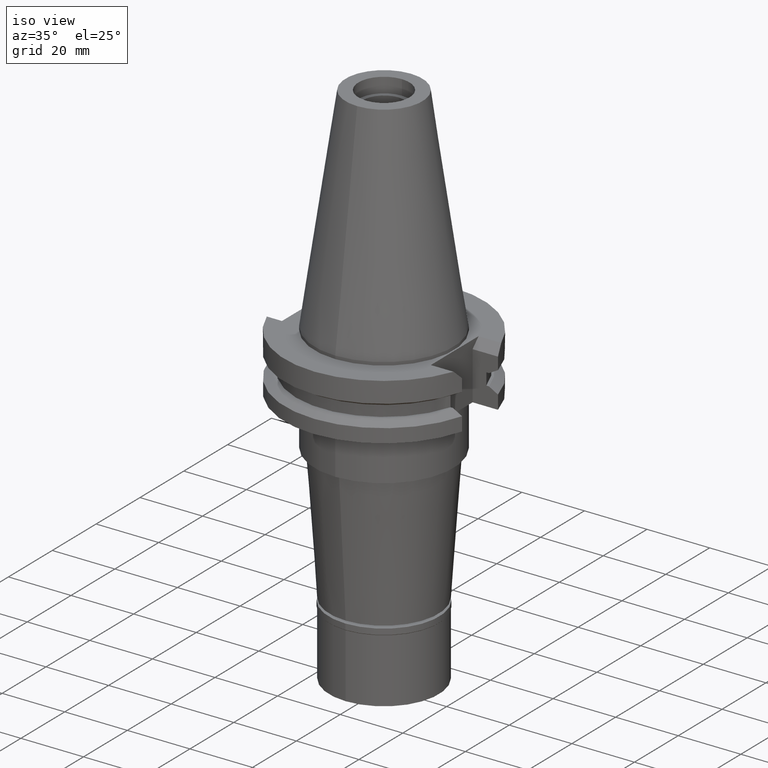
[diagram: clean part render]
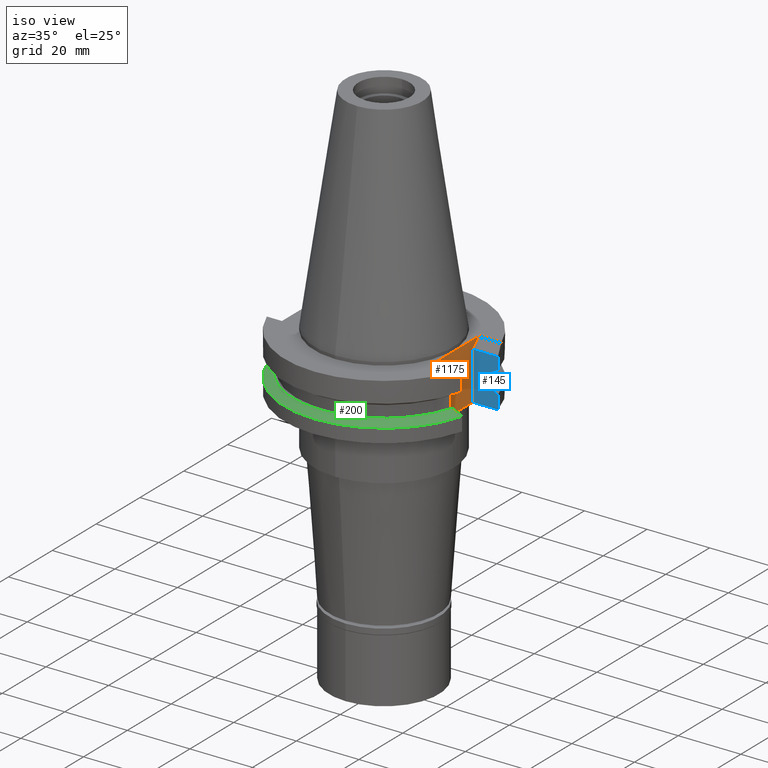
[diagram: same view with three faces highlighted in distinct colors, each labeled with its STEP entity id]
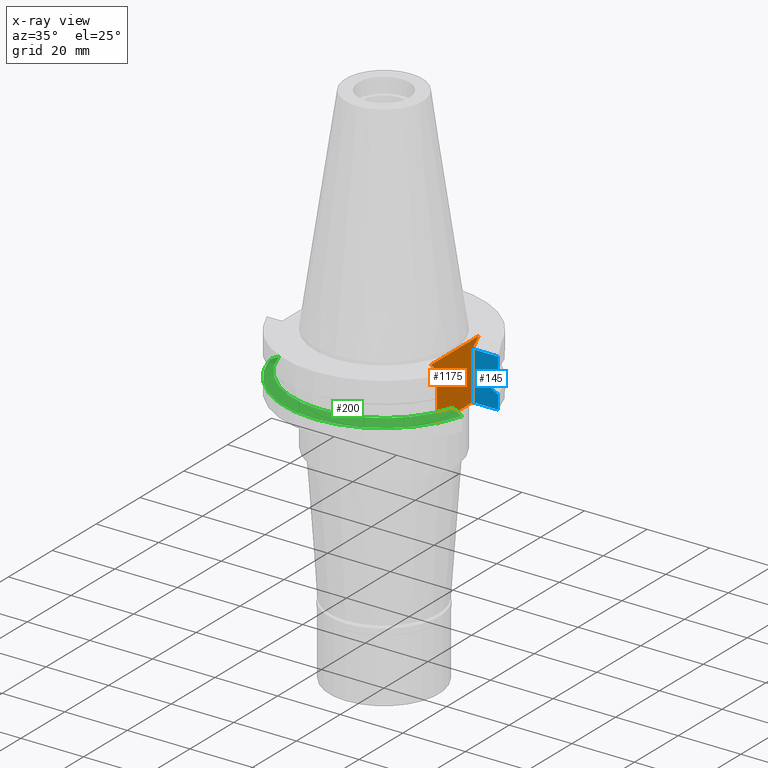
[diagram: x-ray of the same camera — body ghosted, the three highlighted faces saturated]
A machine part, iso view with three faces highlighted in distinct colors.
The next image is the same camera in x-ray (body ghosted, the three faces saturated) — at least one of them is partly hidden behind the body in this view.
Their STEP definitions:

[orange] entity #1175 — the highlighted planar face has unit normal (1, 0, 0).
#1 = CARTESIAN_POINT ( 'NONE',  ( 22.57000000000000028, -8.189999999999999503, -3.700000000000000178 ) ) ;
#35 = VECTOR ( 'NONE', #3303, 1000.000000000000000 ) ;
#162 = VERTEX_POINT ( 'NONE', #1974 ) ;
#183 = VECTOR ( 'NONE', #526, 1000.000000000000114 ) ;
#290 = VECTOR ( 'NONE', #2380, 1000.000000000000114 ) ;
#321 = LINE ( 'NONE', #338, #2744 ) ;
#338 = CARTESIAN_POINT ( 'NONE',  ( 22.57000000000000028, 10.89000000000000057, -1.000000000000000000 ) ) ;
#417 = CARTESIAN_POINT ( 'NONE',  ( 22.57000000000000028, 8.189999999999999503, -3.700000000000000178 ) ) ;
#426 = LINE ( 'NONE', #1454, #35 ) ;
#435 = DIRECTION ( 'NONE',  ( 1.000000000000000000, 0.0000000000000000000, 0.0000000000000000000 ) ) ;
#526 = DIRECTION ( 'NONE',  ( 0.0000000000000000000, -0.7071067811865474617, -0.7071067811865474617 ) ) ;
#676 = ORIENTED_EDGE ( 'NONE', *, *, #935, .F. ) ;
#720 = AXIS2_PLACEMENT_3D ( 'NONE', #3000, #435, #2269 ) ;
#760 = LINE ( 'NONE', #1579, #183 ) ;
#916 = DIRECTION ( 'NONE',  ( 0.0000000000000000000, 0.0000000000000000000, -1.000000000000000000 ) ) ;
#935 = EDGE_CURVE ( 'NONE', #2408, #3145, #2826, .T. ) ;
#1088 = CARTESIAN_POINT ( 'NONE',  ( 22.57000000000000028, -8.189999999999999503, -19.05000000000000071 ) ) ;
#1175 = ADVANCED_FACE ( 'NONE', ( #2533 ), #2474, .T. ) ;
#1315 = ORIENTED_EDGE ( 'NONE', *, *, #2962, .F. ) ;
#1316 = EDGE_CURVE ( 'NONE', #2788, #1557, #760, .T. ) ;
#1363 = DIRECTION ( 'NONE',  ( 0.0000000000000000000, -1.000000000000000000, 0.0000000000000000000 ) ) ;
#1407 = ORIENTED_EDGE ( 'NONE', *, *, #3300, .T. ) ;
#1454 = CARTESIAN_POINT ( 'NONE',  ( 22.57000000000000028, 8.189999999999999503, -19.05000000000000071 ) ) ;
#1524 = ORIENTED_EDGE ( 'NONE', *, *, #2462, .F. ) ;
#1557 = VERTEX_POINT ( 'NONE', #417 ) ;
#1579 = CARTESIAN_POINT ( 'NONE',  ( 22.57000000000000028, 10.89000000000000057, -1.000000000000000000 ) ) ;
#1601 = VECTOR ( 'NONE', #916, 1000.000000000000000 ) ;
#1708 = LINE ( 'NONE', #2018, #1748 ) ;
#1747 = DIRECTION ( 'NONE',  ( 0.0000000000000000000, 0.0000000000000000000, 1.000000000000000000 ) ) ;
#1748 = VECTOR ( 'NONE', #1747, 1000.000000000000000 ) ;
#1871 = EDGE_LOOP ( 'NONE', ( #2439, #2655, #1407, #676, #1524, #1315 ) ) ;
#1899 = CARTESIAN_POINT ( 'NONE',  ( 22.57000000000000028, 10.89000000000000057, -1.000000000000000000 ) ) ;
#1964 = LINE ( 'NONE', #2013, #1601 ) ;
#1974 = CARTESIAN_POINT ( 'NONE',  ( 22.57000000000000028, 8.189999999999999503, -19.05000000000000071 ) ) ;
#2013 = CARTESIAN_POINT ( 'NONE',  ( 22.57000000000000028, 8.189999999999999503, -3.700000000000000178 ) ) ;
#2018 = CARTESIAN_POINT ( 'NONE',  ( 22.57000000000000028, -8.189999999999999503, -19.05000000000000071 ) ) ;
#2176 = VERTEX_POINT ( 'NONE', #1088 ) ;
#2269 = DIRECTION ( 'NONE',  ( 0.0000000000000000000, 1.000000000000000000, 0.0000000000000000000 ) ) ;
#2380 = DIRECTION ( 'NONE',  ( 0.0000000000000000000, -0.7071067811865474617, 0.7071067811865474617 ) ) ;
#2408 = VERTEX_POINT ( 'NONE', #2483 ) ;
#2439 = ORIENTED_EDGE ( 'NONE', *, *, #2887, .F. ) ;
#2462 = EDGE_CURVE ( 'NONE', #2176, #2408, #1708, .T. ) ;
#2474 = PLANE ( 'NONE',  #720 ) ;
#2483 = CARTESIAN_POINT ( 'NONE',  ( 22.57000000000000028, -8.189999999999999503, -3.700000000000000178 ) ) ;
#2533 = FACE_OUTER_BOUND ( 'NONE', #1871, .T. ) ;
#2566 = CARTESIAN_POINT ( 'NONE',  ( 22.57000000000000028, -10.89000000000000057, -1.000000000000000000 ) ) ;
#2655 = ORIENTED_EDGE ( 'NONE', *, *, #1316, .F. ) ;
#2744 = VECTOR ( 'NONE', #1363, 1000.000000000000000 ) ;
#2788 = VERTEX_POINT ( 'NONE', #1899 ) ;
#2826 = LINE ( 'NONE', #1, #290 ) ;
#2887 = EDGE_CURVE ( 'NONE', #1557, #162, #1964, .T. ) ;
#2962 = EDGE_CURVE ( 'NONE', #162, #2176, #426, .T. ) ;
#3000 = CARTESIAN_POINT ( 'NONE',  ( 22.57000000000000028, 0.0000000000000000000, 0.0000000000000000000 ) ) ;
#3145 = VERTEX_POINT ( 'NONE', #2566 ) ;
#3300 = EDGE_CURVE ( 'NONE', #2788, #3145, #321, .T. ) ;
#3303 = DIRECTION ( 'NONE',  ( 0.0000000000000000000, -1.000000000000000000, 0.0000000000000000000 ) ) ;

[blue] entity #145 — the highlighted planar face has unit normal (0, 1, 0).
#22 = VECTOR ( 'NONE', #1959, 1000.000000000000114 ) ;
#28 = EDGE_LOOP ( 'NONE', ( #1380, #1258, #2688, #1709, #215, #280, #1425, #1812, #2003, #827 ) ) ;
#60 = CARTESIAN_POINT ( 'NONE',  ( 30.67550162588999640, 8.189999999999999503, -3.700000000000000178 ) ) ;
#71 = EDGE_CURVE ( 'NONE', #162, #837, #3212, .T. ) ;
#73 = CARTESIAN_POINT ( 'NONE',  ( 29.69744119761000078, 8.189999973648999898, -14.10665284434999833 ) ) ;
#145 = ADVANCED_FACE ( 'NONE', ( #2024 ), #3314, .F. ) ;
#162 = VERTEX_POINT ( 'NONE', #1974 ) ;
#167 = EDGE_CURVE ( 'NONE', #2319, #847, #2283, .T. ) ;
#215 = ORIENTED_EDGE ( 'NONE', *, *, #1558, .T. ) ;
#231 = VERTEX_POINT ( 'NONE', #1716 ) ;
#255 = CARTESIAN_POINT ( 'NONE',  ( 30.67550162588999640, 8.189999999999999503, -19.05000000000000071 ) ) ;
#280 = ORIENTED_EDGE ( 'NONE', *, *, #3165, .F. ) ;
#293 = CARTESIAN_POINT ( 'NONE',  ( 27.79399588452999836, 8.189999365884000682, -9.210000000000999165 ) ) ;
#331 = CARTESIAN_POINT ( 'NONE',  ( 27.79399588513999930, 8.189999365855999969, -13.05000000000000071 ) ) ;
#348 = CARTESIAN_POINT ( 'NONE',  ( 28.73694899415999870, 8.190000279304998188, -13.57268906905999906 ) ) ;
#405 = EDGE_CURVE ( 'NONE', #1406, #231, #2634, .T. ) ;
#417 = CARTESIAN_POINT ( 'NONE',  ( 22.57000000000000028, 8.189999999999999503, -3.700000000000000178 ) ) ;
#510 = CARTESIAN_POINT ( 'NONE',  ( 30.67550165918999738, 8.189999875278999752, -7.608164472509999499 ) ) ;
#575 = VECTOR ( 'NONE', #2237, 1000.000000000000000 ) ;
#634 = DIRECTION ( 'NONE',  ( -1.000000000000000000, 0.0000000000000000000, 0.0000000000000000000 ) ) ;
#827 = ORIENTED_EDGE ( 'NONE', *, *, #71, .T. ) ;
#835 = LINE ( 'NONE', #60, #1922 ) ;
#837 = VERTEX_POINT ( 'NONE', #255 ) ;
#847 = VERTEX_POINT ( 'NONE', #2867 ) ;
#916 = DIRECTION ( 'NONE',  ( 0.0000000000000000000, 0.0000000000000000000, -1.000000000000000000 ) ) ;
#947 = CARTESIAN_POINT ( 'NONE',  ( 30.67550165918999738, 8.189999875278999752, -7.608164472509999499 ) ) ;
#1128 = DIRECTION ( 'NONE',  ( -8.520540617844995460E-09, 3.191302751658998379E-08, 0.9999999999999994449 ) ) ;
#1137 = CARTESIAN_POINT ( 'NONE',  ( 28.10663871241999701, 8.189999365855999969, -13.22314389729000084 ) ) ;
#1138 = LINE ( 'NONE', #1411, #2302 ) ;
#1142 = LINE ( 'NONE', #1909, #2428 ) ;
#1151 = CARTESIAN_POINT ( 'NONE',  ( 30.34780718434999969, 8.189999875283000108, -14.46904384238999874 ) ) ;
#1204 = DIRECTION ( 'NONE',  ( 1.000000000000000000, 0.0000000000000000000, 0.0000000000000000000 ) ) ;
#1245 = VERTEX_POINT ( 'NONE', #293 ) ;
#1248 = LINE ( 'NONE', #3287, #2035 ) ;
#1258 = ORIENTED_EDGE ( 'NONE', *, *, #405, .T. ) ;
#1349 = B_SPLINE_CURVE_WITH_KNOTS ( 'NONE', 3,
 ( #510, #2970, #2641, #2390 ),
 .UNSPECIFIED., .F., .F.,
 ( 4, 4 ),
 ( 0.0000000000000000000, 1.000000000000000000 ),
 .UNSPECIFIED. ) ;
#1360 = CARTESIAN_POINT ( 'NONE',  ( 22.57000000000000028, 8.189999999999999503, -19.05000000000000071 ) ) ;
#1368 = EDGE_CURVE ( 'NONE', #2563, #1557, #835, .T. ) ;
#1380 = ORIENTED_EDGE ( 'NONE', *, *, #2373, .T. ) ;
#1399 = EDGE_CURVE ( 'NONE', #2319, #231, #1138, .T. ) ;
#1406 = VERTEX_POINT ( 'NONE', #3211 ) ;
#1411 = CARTESIAN_POINT ( 'NONE',  ( 26.96361066326000255, 8.189999999999999503, -13.05000000000000071 ) ) ;
#1425 = ORIENTED_EDGE ( 'NONE', *, *, #3219, .T. ) ;
#1487 = CARTESIAN_POINT ( 'NONE',  ( 26.96361066326000255, 8.189999999999999503, -9.209999999999999076 ) ) ;
#1492 = DIRECTION ( 'NONE',  ( -0.0000000000000000000, 1.000000000000000000, 0.0000000000000000000 ) ) ;
#1557 = VERTEX_POINT ( 'NONE', #417 ) ;
#1558 = EDGE_CURVE ( 'NONE', #847, #1245, #1682, .T. ) ;
#1601 = VECTOR ( 'NONE', #916, 1000.000000000000000 ) ;
#1682 = LINE ( 'NONE', #1487, #22 ) ;
#1687 = VERTEX_POINT ( 'NONE', #947 ) ;
#1709 = ORIENTED_EDGE ( 'NONE', *, *, #167, .T. ) ;
#1716 = CARTESIAN_POINT ( 'NONE',  ( 27.79399588513999930, 8.189999365855999969, -13.05000000000000071 ) ) ;
#1812 = ORIENTED_EDGE ( 'NONE', *, *, #1368, .T. ) ;
#1909 = CARTESIAN_POINT ( 'NONE',  ( 30.67550165918999738, 8.189999875278999752, -7.608164472509999499 ) ) ;
#1922 = VECTOR ( 'NONE', #634, 1000.000000000000000 ) ;
#1959 = DIRECTION ( 'NONE',  ( 0.9999999999997083444, -7.636413557940063217E-07, -1.155165902171010713E-12 ) ) ;
#1964 = LINE ( 'NONE', #2013, #1601 ) ;
#1974 = CARTESIAN_POINT ( 'NONE',  ( 22.57000000000000028, 8.189999999999999503, -19.05000000000000071 ) ) ;
#1995 = CARTESIAN_POINT ( 'NONE',  ( 22.57000000000000028, 8.189999999999999503, -19.05000000000000071 ) ) ;
#2003 = ORIENTED_EDGE ( 'NONE', *, *, #2887, .T. ) ;
#2013 = CARTESIAN_POINT ( 'NONE',  ( 22.57000000000000028, 8.189999999999999503, -3.700000000000000178 ) ) ;
#2024 = FACE_OUTER_BOUND ( 'NONE', #28, .T. ) ;
#2035 = VECTOR ( 'NONE', #2293, 999.9999999999998863 ) ;
#2143 = DIRECTION ( 'NONE',  ( 0.9999999999997083444, -7.636748849899072258E-07, 5.711653623182053787E-13 ) ) ;
#2237 = DIRECTION ( 'NONE',  ( 0.0000000000000000000, 0.0000000000000000000, 1.000000000000000000 ) ) ;
#2283 = LINE ( 'NONE', #2800, #575 ) ;
#2293 = DIRECTION ( 'NONE',  ( 7.571019856191995445E-09, -2.835662177205999185E-08, 0.9999999999999996669 ) ) ;
#2302 = VECTOR ( 'NONE', #2143, 1000.000000000000114 ) ;
#2319 = VERTEX_POINT ( 'NONE', #2746 ) ;
#2373 = EDGE_CURVE ( 'NONE', #837, #1406, #1248, .T. ) ;
#2390 = CARTESIAN_POINT ( 'NONE',  ( 27.79399588452999836, 8.189999365884000682, -9.210000000000999165 ) ) ;
#2400 = DIRECTION ( 'NONE',  ( 1.000000000000000000, 0.0000000000000000000, 0.0000000000000000000 ) ) ;
#2428 = VECTOR ( 'NONE', #1128, 1000.000000000000114 ) ;
#2563 = VERTEX_POINT ( 'NONE', #2824 ) ;
#2634 = B_SPLINE_CURVE_WITH_KNOTS ( 'NONE', 3,
 ( #2963, #1151, #73, #348, #1137, #331 ),
 .UNSPECIFIED., .F., .F.,
 ( 4, 1, 1, 4 ),
 ( 0.0000000000000000000, 0.3333333333333000081, 0.6666666666667000474, 1.000000000000000000 ),
 .UNSPECIFIED. ) ;
#2641 = CARTESIAN_POINT ( 'NONE',  ( 28.71170969527060279, 8.189998730372074931, -8.701758252942196847 ) ) ;
#2688 = ORIENTED_EDGE ( 'NONE', *, *, #1399, .F. ) ;
#2746 = CARTESIAN_POINT ( 'NONE',  ( 26.96361066326000255, 8.189999999999999503, -13.05000000000000071 ) ) ;
#2796 = VECTOR ( 'NONE', #2400, 1000.000000000000000 ) ;
#2800 = CARTESIAN_POINT ( 'NONE',  ( 26.96361066326000255, 8.189999999999999503, -13.05000000000000071 ) ) ;
#2824 = CARTESIAN_POINT ( 'NONE',  ( 30.67550162588999640, 8.189999999999999503, -3.700000000000000178 ) ) ;
#2867 = CARTESIAN_POINT ( 'NONE',  ( 26.96361066326000255, 8.189999999999999503, -9.209999999999999076 ) ) ;
#2887 = EDGE_CURVE ( 'NONE', #1557, #162, #1964, .T. ) ;
#2963 = CARTESIAN_POINT ( 'NONE',  ( 30.67550165918999738, 8.189999875283000108, -14.65183552757000029 ) ) ;
#2970 = CARTESIAN_POINT ( 'NONE',  ( 29.67220411607376818, 8.189999750651058008, -8.167814094869120467 ) ) ;
#3165 = EDGE_CURVE ( 'NONE', #1687, #1245, #1349, .T. ) ;
#3197 = AXIS2_PLACEMENT_3D ( 'NONE', #1995, #1492, #1204 ) ;
#3211 = CARTESIAN_POINT ( 'NONE',  ( 30.67550165918999738, 8.189999875283000108, -14.65183552757000029 ) ) ;
#3212 = LINE ( 'NONE', #1360, #2796 ) ;
#3219 = EDGE_CURVE ( 'NONE', #1687, #2563, #1142, .T. ) ;
#3287 = CARTESIAN_POINT ( 'NONE',  ( 30.67550162588999640, 8.189999999999999503, -19.05000000000000071 ) ) ;
#3314 = PLANE ( 'NONE',  #3197 ) ;

[green] entity #200 — the highlighted conical surface has half-angle 60 deg.
#14 = B_SPLINE_CURVE_WITH_KNOTS ( 'NONE', 3,
 ( #594, #540, #1101, #2943, #799, #2415 ),
 .UNSPECIFIED., .F., .F.,
 ( 4, 1, 1, 4 ),
 ( 0.0000000000000000000, 0.3333333333333000081, 0.6666666666667000474, 1.000000000000000000 ),
 .UNSPECIFIED. ) ;
#140 = ORIENTED_EDGE ( 'NONE', *, *, #2841, .T. ) ;
#164 = CARTESIAN_POINT ( 'NONE',  ( 27.79398348517999651, -8.190000189153000321, -13.05000000000000071 ) ) ;
#200 = ADVANCED_FACE ( 'NONE', ( #712 ), #2852, .T. ) ;
#221 = EDGE_CURVE ( 'NONE', #3360, #3356, #3364, .T. ) ;
#222 = DIRECTION ( 'NONE',  ( 0.0000000000000000000, -1.000000000000000000, 0.0000000000000000000 ) ) ;
#540 = CARTESIAN_POINT ( 'NONE',  ( -30.34780718433999880, -8.189999875282001796, -14.46904384237999963 ) ) ;
#585 = VERTEX_POINT ( 'NONE', #2651 ) ;
#594 = CARTESIAN_POINT ( 'NONE',  ( -30.67550165918999738, -8.189999875282001796, -14.65183552755999941 ) ) ;
#626 = CARTESIAN_POINT ( 'NONE',  ( 28.10663854105999704, -8.190000189153000321, -13.22315066505000125 ) ) ;
#687 = AXIS2_PLACEMENT_3D ( 'NONE', #2766, #1189, #222 ) ;
#712 = FACE_OUTER_BOUND ( 'NONE', #2375, .T. ) ;
#716 = DIRECTION ( 'NONE',  ( 0.0000000000000000000, 0.0000000000000000000, -1.000000000000000000 ) ) ;
#799 = CARTESIAN_POINT ( 'NONE',  ( -28.10663871241999701, -8.189999365860998637, -13.22314389732999906 ) ) ;
#1095 = CARTESIAN_POINT ( 'NONE',  ( 29.69743958189000210, -8.189999744664000048, -14.10664930519999949 ) ) ;
#1101 = CARTESIAN_POINT ( 'NONE',  ( -29.69744119758999901, -8.189999973649999987, -14.10665284433999922 ) ) ;
#1116 = CARTESIAN_POINT ( 'NONE',  ( 30.34780111448999662, -8.190000601191000484, -14.46904705498999988 ) ) ;
#1134 = CARTESIAN_POINT ( 'NONE',  ( 28.73694386476999796, -8.189999991888001318, -13.57268340806000140 ) ) ;
#1178 = ORIENTED_EDGE ( 'NONE', *, *, #3367, .F. ) ;
#1189 = DIRECTION ( 'NONE',  ( 0.0000000000000000000, 0.0000000000000000000, -1.000000000000000000 ) ) ;
#1242 = DIRECTION ( 'NONE',  ( 0.0000000000000000000, -1.000000000000000000, 0.0000000000000000000 ) ) ;
#1274 = AXIS2_PLACEMENT_3D ( 'NONE', #3271, #716, #1242 ) ;
#1567 = VERTEX_POINT ( 'NONE', #164 ) ;
#1874 = EDGE_CURVE ( 'NONE', #1567, #3360, #3092, .T. ) ;
#1880 = ORIENTED_EDGE ( 'NONE', *, *, #1874, .F. ) ;
#2218 = AXIS2_PLACEMENT_3D ( 'NONE', #2513, #2782, #2297 ) ;
#2257 = ORIENTED_EDGE ( 'NONE', *, *, #221, .F. ) ;
#2259 = CIRCLE ( 'NONE', #1274, 28.97553755052999946 ) ;
#2281 = CARTESIAN_POINT ( 'NONE',  ( 27.79398348517999651, -8.190000189153000321, -13.05000000000000071 ) ) ;
#2297 = DIRECTION ( 'NONE',  ( 0.9661575315241073270, -0.2579527559055020958, 0.0000000000000000000 ) ) ;
#2375 = EDGE_LOOP ( 'NONE', ( #1880, #140, #1178, #2257 ) ) ;
#2384 = CARTESIAN_POINT ( 'NONE',  ( -30.67550165918999738, -8.189999875282001796, -14.65183552755999941 ) ) ;
#2415 = CARTESIAN_POINT ( 'NONE',  ( -27.79399588506999663, -8.189999365860998637, -13.05000000000000071 ) ) ;
#2513 = CARTESIAN_POINT ( 'NONE',  ( 0.0000000000000000000, 1.055021971275999843E-14, -14.65183664206000103 ) ) ;
#2651 = CARTESIAN_POINT ( 'NONE',  ( -27.79399588506999663, -8.189999365860998637, -13.05000000000000071 ) ) ;
#2766 = CARTESIAN_POINT ( 'NONE',  ( 0.0000000000000000000, 1.055021971275999843E-14, -13.85091832103000087 ) ) ;
#2782 = DIRECTION ( 'NONE',  ( 0.0000000000000000000, 0.0000000000000000000, -1.000000000000000000 ) ) ;
#2841 = EDGE_CURVE ( 'NONE', #1567, #585, #2259, .T. ) ;
#2852 = CONICAL_SURFACE ( 'NONE', #687, 30.36276877526999840, 1.047197551196400456 ) ;
#2905 = CARTESIAN_POINT ( 'NONE',  ( 30.67550146537999822, -8.190000601191000484, -14.65184201444000145 ) ) ;
#2943 = CARTESIAN_POINT ( 'NONE',  ( -28.73694899414000048, -8.190000279302998010, -13.57268906902000083 ) ) ;
#3092 = B_SPLINE_CURVE_WITH_KNOTS ( 'NONE', 3,
 ( #2281, #626, #1134, #1095, #1116, #3166 ),
 .UNSPECIFIED., .F., .F.,
 ( 4, 1, 1, 4 ),
 ( 0.0000000000000000000, 0.3333333333333000081, 0.6666666666667000474, 1.000000000000000000 ),
 .UNSPECIFIED. ) ;
#3166 = CARTESIAN_POINT ( 'NONE',  ( 30.67550146537999822, -8.190000601191000484, -14.65184201444000145 ) ) ;
#3271 = CARTESIAN_POINT ( 'NONE',  ( 0.0000000000000000000, 1.055021971275999843E-14, -13.05000000000000071 ) ) ;
#3356 = VERTEX_POINT ( 'NONE', #2384 ) ;
#3360 = VERTEX_POINT ( 'NONE', #2905 ) ;
#3364 = CIRCLE ( 'NONE', #2218, 31.74999999999998579 ) ;
#3367 = EDGE_CURVE ( 'NONE', #3356, #585, #14, .T. ) ;